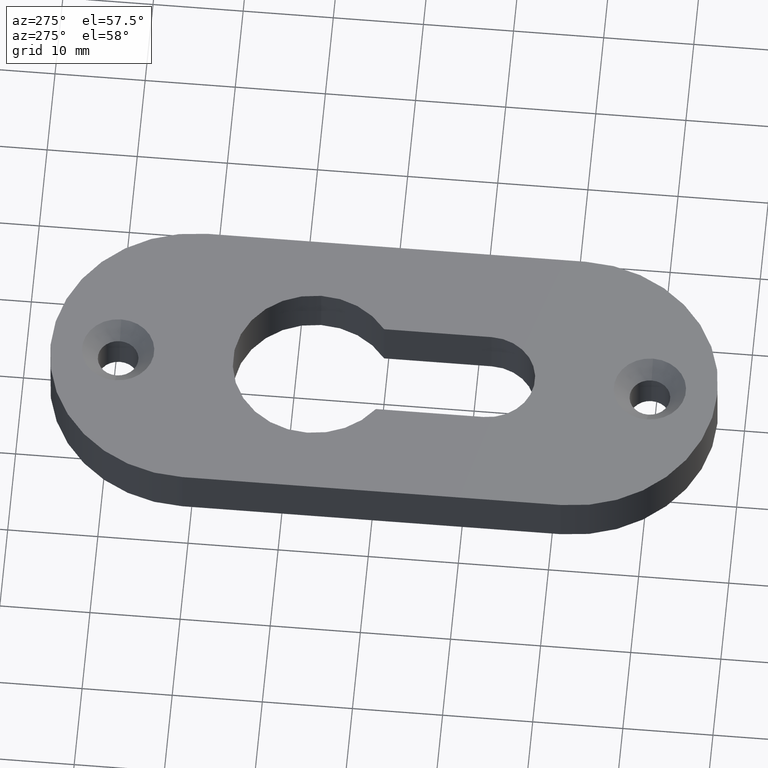
[diagram: clean part render]
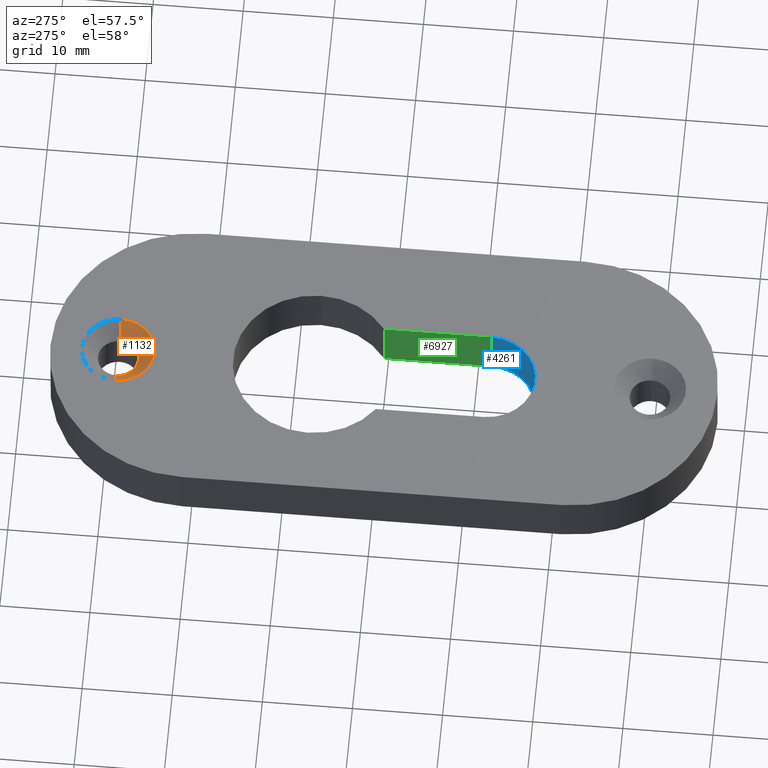
[diagram: same view with three faces highlighted in distinct colors, each labeled with its STEP entity id]
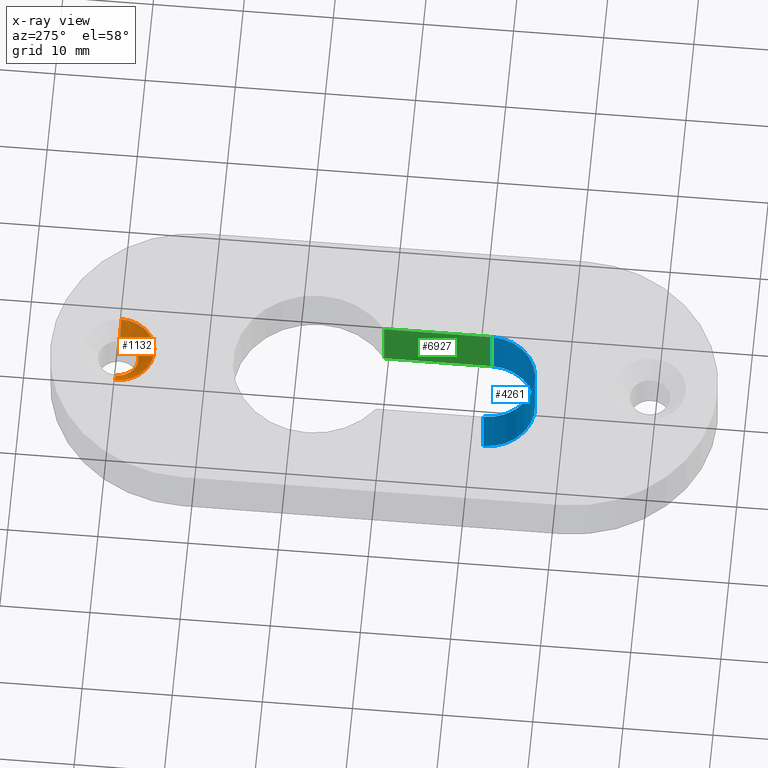
[diagram: x-ray of the same camera — body ghosted, the three highlighted faces saturated]
A machine part, auxiliary view with three faces highlighted in distinct colors.
The next image is the same camera in x-ray (body ghosted, the three faces saturated) — at least one of them is partly hidden behind the body in this view.
Their STEP definitions:

[orange] entity #1132 — the highlighted conical surface has half-angle 45 deg.
#114 = ORIENTED_EDGE ( 'NONE', *, *, #5644, .F. ) ;
#152 = VECTOR ( 'NONE', #4295, 1000.000000000000000 ) ;
#480 = VECTOR ( 'NONE', #4729, 1000.000000000000000 ) ;
#571 = CIRCLE ( 'NONE', #1646, 4.000000000000003600 ) ;
#1132 = ADVANCED_FACE ( 'NONE', ( #9559 ), #7895, .F. ) ;
#1171 = EDGE_LOOP ( 'NONE', ( #10446, #1361, #7996, #114 ) ) ;
#1361 = ORIENTED_EDGE ( 'NONE', *, *, #2807, .T. ) ;
#1646 = AXIS2_PLACEMENT_3D ( 'NONE', #3102, #9362, #10471 ) ;
#2487 = DIRECTION ( 'NONE',  ( 1.000000000000000000, 0.0000000000000000000, 0.0000000000000000000 ) ) ;
#2807 = EDGE_CURVE ( 'NONE', #8984, #9957, #9698, .T. ) ;
#3049 = AXIS2_PLACEMENT_3D ( 'NONE', #4031, #6425, #5635 ) ;
#3102 = CARTESIAN_POINT ( 'NONE',  ( 0.0000000000000000000, 29.50000000000000000, 6.000000000000000000 ) ) ;
#4031 = CARTESIAN_POINT ( 'NONE',  ( 0.0000000000000000000, 29.50000000000000000, 4.250000000000003600 ) ) ;
#4295 = DIRECTION ( 'NONE',  ( -0.7071067811865489100, 8.659560562354948900E-017, 0.7071067811865462400 ) ) ;
#4729 = DIRECTION ( 'NONE',  ( 0.7071067811865489100, 0.0000000000000000000, 0.7071067811865462400 ) ) ;
#4819 = CARTESIAN_POINT ( 'NONE',  ( 0.0000000000000000000, 29.50000000000000000, 4.250000000000003600 ) ) ;
#4929 = LINE ( 'NONE', #8810, #480 ) ;
#5316 = VERTEX_POINT ( 'NONE', #9001 ) ;
#5635 = DIRECTION ( 'NONE',  ( 1.000000000000000000, 0.0000000000000000000, 0.0000000000000000000 ) ) ;
#5644 = EDGE_CURVE ( 'NONE', #6848, #5316, #4929, .T. ) ;
#6397 = CARTESIAN_POINT ( 'NONE',  ( -2.250000000000000900, 29.50000000000000000, 4.250000000000003600 ) ) ;
#6425 = DIRECTION ( 'NONE',  ( 0.0000000000000000000, 0.0000000000000000000, 1.000000000000000000 ) ) ;
#6848 = VERTEX_POINT ( 'NONE', #8667 ) ;
#7895 = CONICAL_SURFACE ( 'NONE', #9357, 2.250000000000000900, 0.7853981633974501700 ) ;
#7996 = ORIENTED_EDGE ( 'NONE', *, *, #10270, .F. ) ;
#8103 = EDGE_CURVE ( 'NONE', #8984, #6848, #8234, .T. ) ;
#8234 = CIRCLE ( 'NONE', #3049, 2.250000000000000900 ) ;
#8667 = CARTESIAN_POINT ( 'NONE',  ( 2.250000000000000900, 29.50000000000000000, 4.250000000000003600 ) ) ;
#8810 = CARTESIAN_POINT ( 'NONE',  ( 2.250000000000000900, 29.50000000000000000, 4.250000000000003600 ) ) ;
#8899 = DIRECTION ( 'NONE',  ( 0.0000000000000000000, 0.0000000000000000000, 1.000000000000000000 ) ) ;
#8984 = VERTEX_POINT ( 'NONE', #6397 ) ;
#9001 = CARTESIAN_POINT ( 'NONE',  ( 4.000000000000003600, 29.50000000000000000, 6.000000000000000000 ) ) ;
#9194 = CARTESIAN_POINT ( 'NONE',  ( -2.250000000000000900, 29.50000000000000000, 4.250000000000003600 ) ) ;
#9284 = CARTESIAN_POINT ( 'NONE',  ( -4.000000000000003600, 29.50000000000000000, 6.000000000000000000 ) ) ;
#9357 = AXIS2_PLACEMENT_3D ( 'NONE', #4819, #8899, #2487 ) ;
#9362 = DIRECTION ( 'NONE',  ( 0.0000000000000000000, -0.0000000000000000000, -1.000000000000000000 ) ) ;
#9559 = FACE_OUTER_BOUND ( 'NONE', #1171, .T. ) ;
#9698 = LINE ( 'NONE', #9194, #152 ) ;
#9957 = VERTEX_POINT ( 'NONE', #9284 ) ;
#10270 = EDGE_CURVE ( 'NONE', #5316, #9957, #571, .T. ) ;
#10446 = ORIENTED_EDGE ( 'NONE', *, *, #8103, .F. ) ;
#10471 = DIRECTION ( 'NONE',  ( 1.000000000000000000, 0.0000000000000000000, 0.0000000000000000000 ) ) ;

[blue] entity #4261 — the highlighted cylindrical surface (partial cylindrical patch) has radius 5.25 mm, axis along (-0, -0, -1).
#37 = CIRCLE ( 'NONE', #7569, 5.250000000000001800 ) ;
#358 = CARTESIAN_POINT ( 'NONE',  ( 5.250000000000001800, -11.50000000000000200, 6.000000000000000000 ) ) ;
#1175 = DIRECTION ( 'NONE',  ( -0.0000000000000000000, -0.0000000000000000000, -1.000000000000000000 ) ) ;
#1495 = VERTEX_POINT ( 'NONE', #5667 ) ;
#1885 = EDGE_CURVE ( 'NONE', #7000, #1495, #37, .T. ) ;
#2503 = AXIS2_PLACEMENT_3D ( 'NONE', #4557, #4494, #7841 ) ;
#3364 = LINE ( 'NONE', #5262, #4915 ) ;
#3700 = CARTESIAN_POINT ( 'NONE',  ( -7.041719095097284800E-016, -11.50000000000000200, 6.000000000000000000 ) ) ;
#3780 = CYLINDRICAL_SURFACE ( 'NONE', #4714, 5.250000000000001800 ) ;
#3813 = DIRECTION ( 'NONE',  ( -0.0000000000000000000, -0.0000000000000000000, -1.000000000000000000 ) ) ;
#3846 = VERTEX_POINT ( 'NONE', #5914 ) ;
#4261 = ADVANCED_FACE ( 'NONE', ( #6221 ), #3780, .F. ) ;
#4276 = ORIENTED_EDGE ( 'NONE', *, *, #8789, .T. ) ;
#4494 = DIRECTION ( 'NONE',  ( 0.0000000000000000000, 0.0000000000000000000, 1.000000000000000000 ) ) ;
#4529 = DIRECTION ( 'NONE',  ( 1.000000000000000000, 0.0000000000000000000, 0.0000000000000000000 ) ) ;
#4557 = CARTESIAN_POINT ( 'NONE',  ( -7.041719095097284800E-016, -11.50000000000000200, 0.0000000000000000000 ) ) ;
#4714 = AXIS2_PLACEMENT_3D ( 'NONE', #6509, #3813, #10349 ) ;
#4915 = VECTOR ( 'NONE', #10245, 1000.000000000000000 ) ;
#5046 = CARTESIAN_POINT ( 'NONE',  ( 5.250000000000001800, -11.50000000000000200, 0.0000000000000000000 ) ) ;
#5262 = CARTESIAN_POINT ( 'NONE',  ( -5.250000000000001800, -11.50000000000000200, 6.000000000000000000 ) ) ;
#5667 = CARTESIAN_POINT ( 'NONE',  ( 5.250000000000001800, -11.50000000000000200, 6.000000000000000000 ) ) ;
#5720 = ORIENTED_EDGE ( 'NONE', *, *, #7687, .F. ) ;
#5914 = CARTESIAN_POINT ( 'NONE',  ( -5.250000000000001800, -11.50000000000000200, 0.0000000000000000000 ) ) ;
#6221 = FACE_OUTER_BOUND ( 'NONE', #7616, .T. ) ;
#6509 = CARTESIAN_POINT ( 'NONE',  ( -7.041719095097284800E-016, -11.50000000000000200, 6.000000000000000000 ) ) ;
#6571 = CARTESIAN_POINT ( 'NONE',  ( -5.250000000000001800, -11.50000000000000200, 6.000000000000000000 ) ) ;
#7000 = VERTEX_POINT ( 'NONE', #6571 ) ;
#7569 = AXIS2_PLACEMENT_3D ( 'NONE', #3700, #9221, #4529 ) ;
#7616 = EDGE_LOOP ( 'NONE', ( #5720, #8066, #7649, #4276 ) ) ;
#7649 = ORIENTED_EDGE ( 'NONE', *, *, #1885, .T. ) ;
#7687 = EDGE_CURVE ( 'NONE', #3846, #10343, #10138, .T. ) ;
#7841 = DIRECTION ( 'NONE',  ( 1.000000000000000000, 0.0000000000000000000, 0.0000000000000000000 ) ) ;
#8066 = ORIENTED_EDGE ( 'NONE', *, *, #9602, .F. ) ;
#8367 = VECTOR ( 'NONE', #1175, 1000.000000000000000 ) ;
#8789 = EDGE_CURVE ( 'NONE', #1495, #10343, #10530, .T. ) ;
#9221 = DIRECTION ( 'NONE',  ( 0.0000000000000000000, 0.0000000000000000000, 1.000000000000000000 ) ) ;
#9602 = EDGE_CURVE ( 'NONE', #7000, #3846, #3364, .T. ) ;
#10138 = CIRCLE ( 'NONE', #2503, 5.250000000000001800 ) ;
#10245 = DIRECTION ( 'NONE',  ( -0.0000000000000000000, -0.0000000000000000000, -1.000000000000000000 ) ) ;
#10343 = VERTEX_POINT ( 'NONE', #5046 ) ;
#10349 = DIRECTION ( 'NONE',  ( -1.000000000000000000, 0.0000000000000000000, 0.0000000000000000000 ) ) ;
#10530 = LINE ( 'NONE', #358, #8367 ) ;

[green] entity #6927 — the highlighted planar face has unit normal (-1, -0, 0).
#358 = CARTESIAN_POINT ( 'NONE',  ( 5.250000000000001800, -11.50000000000000200, 6.000000000000000000 ) ) ;
#439 = ORIENTED_EDGE ( 'NONE', *, *, #8789, .F. ) ;
#611 = EDGE_CURVE ( 'NONE', #2372, #882, #10341, .T. ) ;
#882 = VERTEX_POINT ( 'NONE', #6963 ) ;
#959 = EDGE_CURVE ( 'NONE', #1495, #2372, #5102, .T. ) ;
#1175 = DIRECTION ( 'NONE',  ( -0.0000000000000000000, -0.0000000000000000000, -1.000000000000000000 ) ) ;
#1266 = ORIENTED_EDGE ( 'NONE', *, *, #611, .T. ) ;
#1344 = EDGE_LOOP ( 'NONE', ( #4933, #439, #9074, #1266 ) ) ;
#1495 = VERTEX_POINT ( 'NONE', #5667 ) ;
#2352 = FACE_OUTER_BOUND ( 'NONE', #1344, .T. ) ;
#2372 = VERTEX_POINT ( 'NONE', #3607 ) ;
#2923 = PLANE ( 'NONE',  #4490 ) ;
#3557 = VECTOR ( 'NONE', #7147, 1000.000000000000000 ) ;
#3607 = CARTESIAN_POINT ( 'NONE',  ( 5.250000000000000000, 0.4399042413932808800, 6.000000000000000000 ) ) ;
#3966 = CARTESIAN_POINT ( 'NONE',  ( 5.250000000000000000, 0.4399042413932808800, 6.000000000000000000 ) ) ;
#4490 = AXIS2_PLACEMENT_3D ( 'NONE', #5404, #10444, #6622 ) ;
#4933 = ORIENTED_EDGE ( 'NONE', *, *, #9622, .F. ) ;
#5046 = CARTESIAN_POINT ( 'NONE',  ( 5.250000000000001800, -11.50000000000000200, 0.0000000000000000000 ) ) ;
#5102 = LINE ( 'NONE', #3966, #8943 ) ;
#5404 = CARTESIAN_POINT ( 'NONE',  ( 5.250000000000000000, 0.4399042413932808800, 6.000000000000000000 ) ) ;
#5545 = CARTESIAN_POINT ( 'NONE',  ( 5.250000000000000000, 0.4399042413932808800, 6.000000000000000000 ) ) ;
#5667 = CARTESIAN_POINT ( 'NONE',  ( 5.250000000000001800, -11.50000000000000200, 6.000000000000000000 ) ) ;
#6622 = DIRECTION ( 'NONE',  ( 1.452878884876534100E-016, -1.000000000000000000, 0.0000000000000000000 ) ) ;
#6927 = ADVANCED_FACE ( 'NONE', ( #2352 ), #2923, .T. ) ;
#6930 = VECTOR ( 'NONE', #10186, 1000.000000000000000 ) ;
#6963 = CARTESIAN_POINT ( 'NONE',  ( 5.250000000000000000, 0.4399042413932808800, 0.0000000000000000000 ) ) ;
#7147 = DIRECTION ( 'NONE',  ( -0.0000000000000000000, -0.0000000000000000000, -1.000000000000000000 ) ) ;
#8367 = VECTOR ( 'NONE', #1175, 1000.000000000000000 ) ;
#8562 = CARTESIAN_POINT ( 'NONE',  ( 5.250000000000000000, 0.4399042413932808800, 0.0000000000000000000 ) ) ;
#8789 = EDGE_CURVE ( 'NONE', #1495, #10343, #10530, .T. ) ;
#8943 = VECTOR ( 'NONE', #9685, 1000.000000000000000 ) ;
#9074 = ORIENTED_EDGE ( 'NONE', *, *, #959, .T. ) ;
#9495 = LINE ( 'NONE', #8562, #6930 ) ;
#9622 = EDGE_CURVE ( 'NONE', #10343, #882, #9495, .T. ) ;
#9685 = DIRECTION ( 'NONE',  ( -1.452878884876534100E-016, 1.000000000000000000, -0.0000000000000000000 ) ) ;
#10186 = DIRECTION ( 'NONE',  ( -1.452878884876534100E-016, 1.000000000000000000, -0.0000000000000000000 ) ) ;
#10341 = LINE ( 'NONE', #5545, #3557 ) ;
#10343 = VERTEX_POINT ( 'NONE', #5046 ) ;
#10444 = DIRECTION ( 'NONE',  ( -1.000000000000000000, -1.452878884876534100E-016, 0.0000000000000000000 ) ) ;
#10530 = LINE ( 'NONE', #358, #8367 ) ;